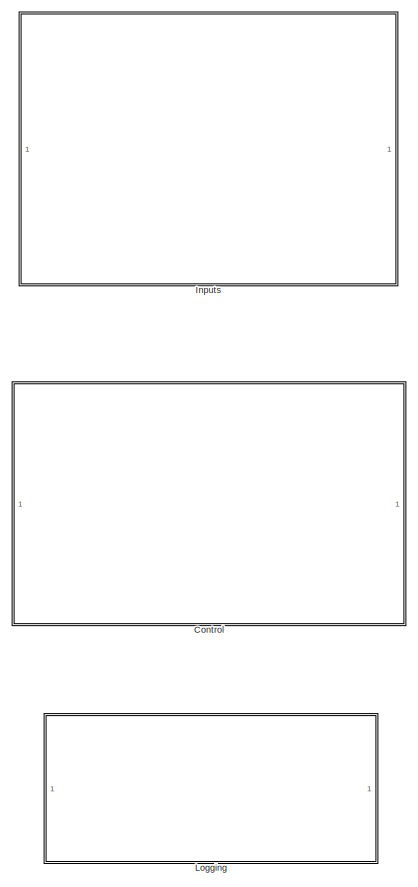
[diagram: root canvas - part 1/2, left side, full height]
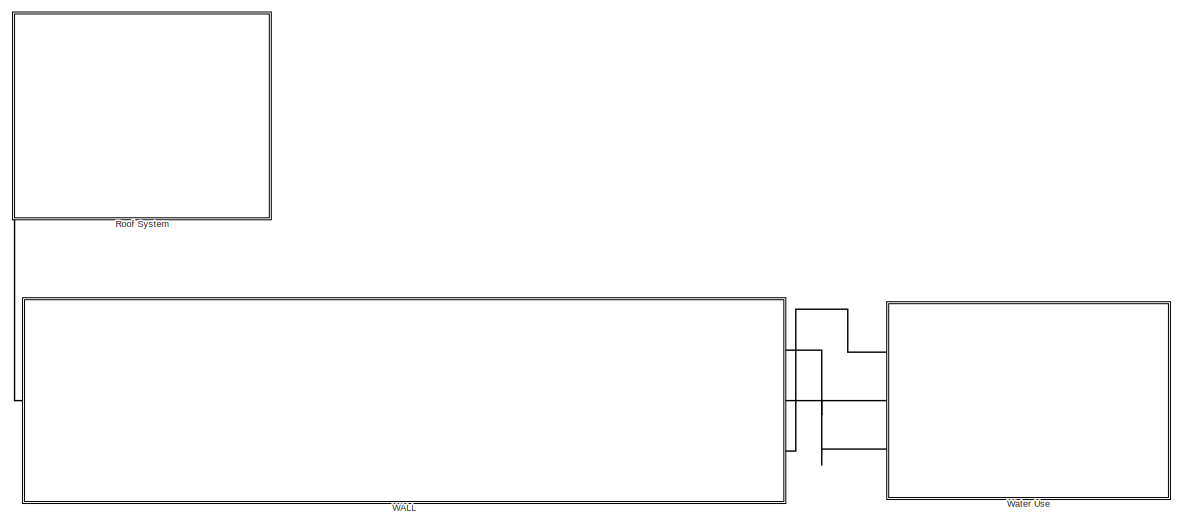
[diagram: root canvas - part 2/2, middle right region]
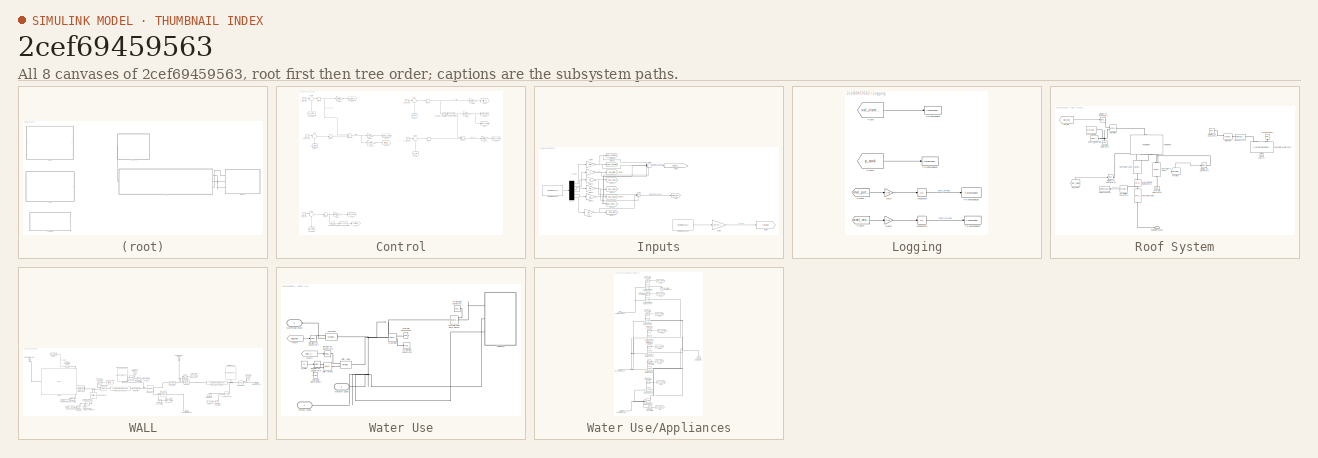
[diagram: thumbnail index - all 8 canvases of the model, root first then tree order]
MODEL slx_2cef69459563
KIND model
CONFIG AbsTol = 1e-3
CONFIG EnableMultiTasking = on
CONFIG FixedStep = auto
CONFIG MaxStep = auto
CONFIG MinStep = auto
CONFIG RelTol = 1e-3
CONFIG SampleTimeConstraint = Unconstrained
CONFIG Solver = VariableStepAuto
CONFIG SolverName = VariableStepAuto
CONFIG StartTime = 0.0
CONFIG StopTime = tf
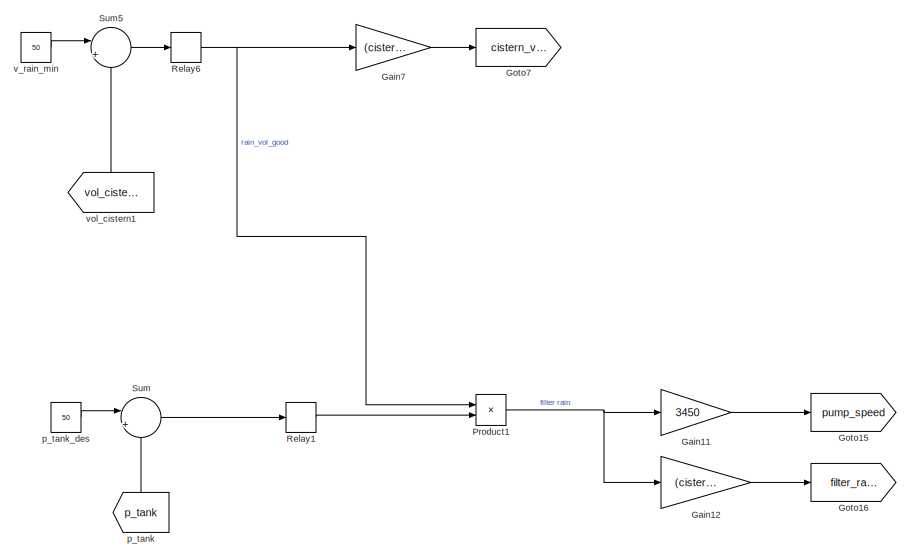
[diagram: Control - part 1/3, top left region]
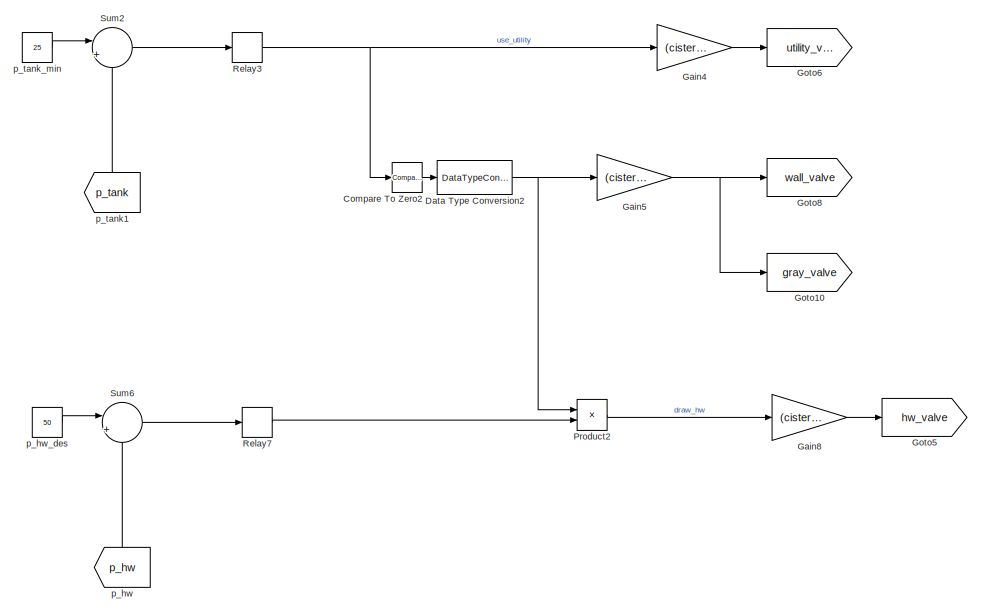
[diagram: Control - part 2/3, top right region]
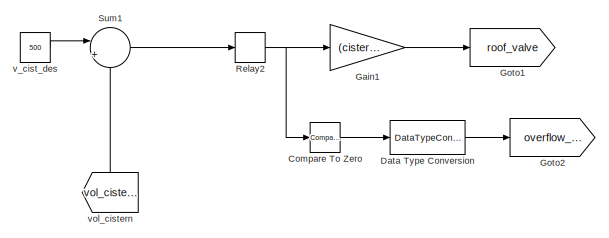
[diagram: Control - part 3/3, bottom left region]
BLOCK [SubSystem] Control
  Ports = []
  RequestExecContextInheritance = off
  Variant = off
BLOCK [Reference] Control/Compare To Zero  REF=simulink/Logic and Bit
Operations/Compare
To Zero
  Ports = [1, 1]
  SourceBlock = simulink/Logic and Bit\nOperations/Compare\nTo Zero
  SourceProductBaseCode = SL
  SourceProductName = Simulink
  SourceType = Compare To Zero
BLOCK [Reference] Control/Compare To Zero2  REF=simulink/Logic and Bit
Operations/Compare
To Zero
  Ports = [1, 1]
  SourceBlock = simulink/Logic and Bit\nOperations/Compare\nTo Zero
  SourceProductBaseCode = SL
  SourceProductName = Simulink
  SourceType = Compare To Zero
BLOCK [DataTypeConversion] Control/Data Type Conversion
  OutDataTypeStr = double
  RndMeth = Floor
  SaturateOnIntegerOverflow = off
BLOCK [DataTypeConversion] Control/Data Type Conversion2
  OutDataTypeStr = double
  RndMeth = Floor
  SaturateOnIntegerOverflow = off
BLOCK [Gain] Control/Gain1
  Gain = (cistern_inlet_diam/2)^2*pi
  OutDataTypeStr = Inherit: Inherit via internal rule
  ParamDataTypeStr = Inherit: Inherit via internal rule
  SaturateOnIntegerOverflow = off
BLOCK [Gain] Control/Gain11
  Gain = 3450
  OutDataTypeStr = Inherit: Inherit via internal rule
  ParamDataTypeStr = Inherit: Inherit via internal rule
  SaturateOnIntegerOverflow = off
BLOCK [Gain] Control/Gain12
  Gain = (cistern_outlet_diam/2)^2*pi
  OutDataTypeStr = Inherit: Inherit via internal rule
  ParamDataTypeStr = Inherit: Inherit via internal rule
  SaturateOnIntegerOverflow = off
BLOCK [Gain] Control/Gain4
  Gain = (cistern_outlet_diam/2)^2*pi
  OutDataTypeStr = Inherit: Inherit via internal rule
  ParamDataTypeStr = Inherit: Inherit via internal rule
  SaturateOnIntegerOverflow = off
BLOCK [Gain] Control/Gain5
  Gain = (cistern_outlet_diam/2)^2*pi
  OutDataTypeStr = Inherit: Inherit via internal rule
  ParamDataTypeStr = Inherit: Inherit via internal rule
  SaturateOnIntegerOverflow = off
BLOCK [Gain] Control/Gain7
  Gain = (cistern_outlet_diam/2)^2*pi
  OutDataTypeStr = Inherit: Inherit via internal rule
  ParamDataTypeStr = Inherit: Inherit via internal rule
  SaturateOnIntegerOverflow = off
BLOCK [Gain] Control/Gain8
  Gain = (cistern_outlet_diam/2)^2*pi
  OutDataTypeStr = Inherit: Inherit via internal rule
  ParamDataTypeStr = Inherit: Inherit via internal rule
  SaturateOnIntegerOverflow = off
BLOCK [Goto] Control/Goto1
  GotoTag = roof_valve
  TagVisibility = global
BLOCK [Goto] Control/Goto10
  GotoTag = gray_valve
  TagVisibility = global
BLOCK [Goto] Control/Goto15
  GotoTag = pump_speed
  TagVisibility = global
BLOCK [Goto] Control/Goto16
  GotoTag = filter_rain
  TagVisibility = global
BLOCK [Goto] Control/Goto2
  GotoTag = overflow_valve
  TagVisibility = global
BLOCK [Goto] Control/Goto5
  GotoTag = hw_valve
  TagVisibility = global
BLOCK [Goto] Control/Goto6
  GotoTag = utility_valve
  TagVisibility = global
BLOCK [Goto] Control/Goto7
  GotoTag = cistern_valve
  TagVisibility = global
BLOCK [Goto] Control/Goto8
  GotoTag = wall_valve
  TagVisibility = global
BLOCK [Product] Control/Product1
  InputSameDT = off
  OutDataTypeStr = Inherit: Inherit via internal rule
  Ports = [2, 1]
  RndMeth = Floor
  SaturateOnIntegerOverflow = off
BLOCK [Product] Control/Product2
  InputSameDT = off
  OutDataTypeStr = Inherit: Inherit via internal rule
  Ports = [2, 1]
  RndMeth = Floor
  SaturateOnIntegerOverflow = off
BLOCK [Relay] Control/Relay1
  InputProcessing = Elements as channels (sample based)
  OffSwitchValue = -10
  OnSwitchValue = 10
BLOCK [Relay] Control/Relay2
  InputProcessing = Elements as channels (sample based)
  OffSwitchValue = -25
  OnSwitchValue = 25
BLOCK [Relay] Control/Relay3
  InputProcessing = Elements as channels (sample based)
  OffSwitchValue = -20
  OnSwitchValue = 4
BLOCK [Relay] Control/Relay6
  InputProcessing = Elements as channels (sample based)
  OffOutputValue = 1
  OffSwitchValue = -50
  OnOutputValue = 0
  OnSwitchValue = 5
BLOCK [Relay] Control/Relay7
  InputProcessing = Elements as channels (sample based)
  OffSwitchValue = -10
  OnSwitchValue = 10
BLOCK [Sum] Control/Sum
  IconShape = round
  InputSameDT = off
  Inputs = |+-
  OutDataTypeStr = Inherit: Inherit via internal rule
  Ports = [2, 1]
  SaturateOnIntegerOverflow = off
BLOCK [Sum] Control/Sum1
  IconShape = round
  InputSameDT = off
  Inputs = |+-
  OutDataTypeStr = Inherit: Inherit via internal rule
  Ports = [2, 1]
  SaturateOnIntegerOverflow = off
BLOCK [Sum] Control/Sum2
  IconShape = round
  InputSameDT = off
  Inputs = |+-
  OutDataTypeStr = Inherit: Inherit via internal rule
  Ports = [2, 1]
  SaturateOnIntegerOverflow = off
BLOCK [Sum] Control/Sum5
  IconShape = round
  InputSameDT = off
  Inputs = |+-
  OutDataTypeStr = Inherit: Inherit via internal rule
  Ports = [2, 1]
  SaturateOnIntegerOverflow = off
BLOCK [Sum] Control/Sum6
  IconShape = round
  InputSameDT = off
  Inputs = |+-
  OutDataTypeStr = Inherit: Inherit via internal rule
  Ports = [2, 1]
  SaturateOnIntegerOverflow = off
BLOCK [From] Control/p_hw
  GotoTag = p_hw
  TagVisibility = global
BLOCK [Constant] Control/p_hw_des
  Value = 50
BLOCK [From] Control/p_tank
  GotoTag = p_tank
  TagVisibility = global
BLOCK [From] Control/p_tank1
  GotoTag = p_tank
  TagVisibility = global
BLOCK [Constant] Control/p_tank_des
  Value = 50
BLOCK [Constant] Control/p_tank_min
  Value = 25
BLOCK [Constant] Control/v_cist_des
  Value = 500
BLOCK [Constant] Control/v_rain_min
  Value = 50
BLOCK [From] Control/vol_cistern
  GotoTag = vol_cistern
  TagVisibility = global
BLOCK [From] Control/vol_cistern1
  GotoTag = vol_cistern
  TagVisibility = global
BLOCK [SubSystem] Inputs
  Ports = []
  RequestExecContextInheritance = off
  Variant = off
BLOCK [Demux] Inputs/Demux
  DisplayOption = bar
  Outputs = 6
  Ports = [1, 6]
BLOCK [FromWorkspace] Inputs/From Workspace
  SampleTime = 60
  VariableName = demand_profiles
  ZeroCross = on
BLOCK [FromWorkspace] Inputs/From Workspace1
  Interpolate = off
  OutputAfterFinalValue = Setting to zero
  SampleTime = 0
  VariableName = rain_data
  ZeroCross = on
BLOCK [Gain] Inputs/Gain10
  Gain = 0.4
  OutDataTypeStr = Inherit: Inherit via internal rule
  ParamDataTypeStr = Inherit: Inherit via internal rule
  SaturateOnIntegerOverflow = off
BLOCK [Gain] Inputs/Gain11
  Gain = 0.8
  OutDataTypeStr = Inherit: Inherit via internal rule
  ParamDataTypeStr = Inherit: Inherit via internal rule
  SaturateOnIntegerOverflow = off
BLOCK [Gain] Inputs/Gain12
  Gain = 1.5
  OutDataTypeStr = Inherit: Inherit via internal rule
  ParamDataTypeStr = Inherit: Inherit via internal rule
  SaturateOnIntegerOverflow = off
BLOCK [Gain] Inputs/Gain13
  Gain = 4/5
  OutDataTypeStr = Inherit: Inherit via internal rule
  ParamDataTypeStr = Inherit: Inherit via internal rule
  SaturateOnIntegerOverflow = off
BLOCK [Gain] Inputs/Gain2
  Gain = 50*70*.75*.6/(3600)
  OutDataTypeStr = Inherit: Inherit via internal rule
  ParamDataTypeStr = Inherit: Inherit via internal rule
  SaturateOnIntegerOverflow = off
BLOCK [Gain] Inputs/Gain8
  Gain = 2.5/2
  OutDataTypeStr = Inherit: Inherit via internal rule
  ParamDataTypeStr = Inherit: Inherit via internal rule
  SaturateOnIntegerOverflow = off
BLOCK [Gain] Inputs/Gain9
  Gain = 2
  OutDataTypeStr = Inherit: Inherit via internal rule
  ParamDataTypeStr = Inherit: Inherit via internal rule
  SaturateOnIntegerOverflow = off
BLOCK [Goto] Inputs/Goto
  GotoTag = total_potable
  TagVisibility = global
BLOCK [Goto] Inputs/Goto1
  GotoTag = total_recycled
  TagVisibility = global
BLOCK [Goto] Inputs/Goto11
  GotoTag = app_shower
  TagVisibility = global
BLOCK [Goto] Inputs/Goto12
  GotoTag = app_toilet
  TagVisibility = global
BLOCK [Goto] Inputs/Goto13
  GotoTag = app_sink1
  TagVisibility = global
BLOCK [Goto] Inputs/Goto14
  GotoTag = app_sink2
  TagVisibility = global
BLOCK [Goto] Inputs/Goto15
  GotoTag = app_wash
  TagVisibility = global
BLOCK [Goto] Inputs/Goto16
  GotoTag = app_wash_hw
  TagVisibility = global
BLOCK [Goto] Inputs/Goto17
  GotoTag = app_dish
  TagVisibility = global
BLOCK [Goto] Inputs/Goto18
  GotoTag = app_shower_hw
  TagVisibility = global
BLOCK [Goto] Inputs/Goto4
  GotoTag = rain_flow
  TagVisibility = global
BLOCK [Sum] Inputs/Sum2
  IconShape = round
  InputSameDT = off
  Inputs = |+++++
  OutDataTypeStr = Inherit: Inherit via internal rule
  Ports = [5, 1]
  SaturateOnIntegerOverflow = off
BLOCK [Sum] Inputs/Sum3
  IconShape = round
  InputSameDT = off
  Inputs = |+++
  OutDataTypeStr = Inherit: Inherit via internal rule
  Ports = [3, 1]
  SaturateOnIntegerOverflow = off
BLOCK [SubSystem] Logging
  Ports = []
  RequestExecContextInheritance = off
  Variant = off
BLOCK [From] Logging/From
  GotoTag = vol_cistern
  TagVisibility = global
BLOCK [From] Logging/From2
  GotoTag = total_potable
  TagVisibility = global
BLOCK [From] Logging/From3
  GotoTag = p_tank
  TagVisibility = global
BLOCK [From] Logging/From4
  GotoTag = total_recycled
  TagVisibility = global
BLOCK [Gain] Logging/Gain
  Gain = 1/60
  OutDataTypeStr = Inherit: Inherit via internal rule
  ParamDataTypeStr = Inherit: Inherit via internal rule
  SaturateOnIntegerOverflow = off
BLOCK [Gain] Logging/Gain1
  Gain = 1/60
  OutDataTypeStr = Inherit: Inherit via internal rule
  ParamDataTypeStr = Inherit: Inherit via internal rule
  SaturateOnIntegerOverflow = off
BLOCK [Integrator] Logging/Integrator
  Ports = [1, 1]
BLOCK [Integrator] Logging/Integrator1
  Ports = [1, 1]
BLOCK [ToWorkspace] Logging/To Workspace
  FixptAsFi = on
  MaxDataPoints = inf
  Ports = [1]
  SampleTime = 3600
  Save2DSignal = 3-D array (concatenate along third dimension)
  SaveFormat = Timeseries
  VariableName = sim_vol_cist
BLOCK [ToWorkspace] Logging/To Workspace2
  FixptAsFi = on
  MaxDataPoints = inf
  Ports = [1]
  SampleTime = 3600
  Save2DSignal = 3-D array (concatenate along third dimension)
  SaveFormat = Timeseries
  VariableName = sim_p_rec
BLOCK [ToWorkspace] Logging/To Workspace3
  FixptAsFi = on
  MaxDataPoints = inf
  Ports = [1]
  SampleTime = 3600
  Save2DSignal = 3-D array (concatenate along third dimension)
  SaveFormat = Timeseries
  VariableName = sim_total_potable
BLOCK [ToWorkspace] Logging/To Workspace4
  FixptAsFi = on
  MaxDataPoints = inf
  Ports = [1]
  SampleTime = 3600
  Save2DSignal = 3-D array (concatenate along third dimension)
  SaveFormat = Timeseries
  VariableName = sim_total_recycled
BLOCK [SubSystem] Roof System
  Ports = [0, 0, 0, 0, 0, 1]
  RequestExecContextInheritance = off
  Variant = off
BLOCK [Reference] Roof System/Cap (TL)  REF=fl_lib/Thermal Liquid/Elements/Cap (TL)
  Commented = on
  Ports = [0, 0, 0, 0, 0, 1]
  SourceBlock = fl_lib/Thermal Liquid/Elements/Cap (TL)
  SourceProductBaseCode = SS
  SourceProductName = Simscape
  SourceType = Cap (TL)
BLOCK [Reference] Roof System/Flow Divider  REF=sh_lib/Valves/Flow Control Valves/Flow Divider
  Ports = [0, 0, 0, 0, 0, 1, 2]
  SourceBlock = sh_lib/Valves/Flow Control Valves/Flow Divider
  SourceProductBaseCode = SH
  SourceProductName = Simscape Fluids
  SourceType = Flow Divider
BLOCK [Reference] Roof System/Hydraulic Flow Rate Sensor2  REF=fl_lib/Hydraulic/Hydraulic Sensors/Hydraulic Flow Rate
Sensor
  Ports = [0, 0, 0, 0, 0, 1, 3]
  SourceBlock = fl_lib/Hydraulic/Hydraulic Sensors/Hydraulic Flow Rate\nSensor
  SourceProductBaseCode = SS
  SourceProductName = Simscape
  SourceType = Hydraulic Flow Rate\nSensor
BLOCK [Reference] Roof System/Hydraulic Fluid  REF=sh_lib/Hydraulic Utilities/Hydraulic Fluid
  Ports = [0, 0, 0, 0, 0, 0, 1]
  SourceBlock = sh_lib/Hydraulic Utilities/Hydraulic Fluid
  SourceProductBaseCode = SH
  SourceProductName = Simscape Fluids
  SourceType = Hydraulic Fluid
BLOCK [Reference] Roof System/Hydraulic Reference  REF=fl_lib/Hydraulic/Hydraulic Elements/Hydraulic Reference
  Ports = [0, 0, 0, 0, 0, 1]
  SourceBlock = fl_lib/Hydraulic/Hydraulic Elements/Hydraulic Reference
  SourceProductName = Foundation Library
  SourceType = Hydraulic Reference
BLOCK [Reference] Roof System/Hydraulic Reference3  REF=fl_lib/Hydraulic/Hydraulic Elements/Hydraulic Reference
  Ports = [0, 0, 0, 0, 0, 1]
  SourceBlock = fl_lib/Hydraulic/Hydraulic Elements/Hydraulic Reference
  SourceProductName = Foundation Library
  SourceType = Hydraulic Reference
BLOCK [Reference] Roof System/Interface (TL-IL)  REF=SimscapeFluids_lib/Fluid Network
Interfaces/Interface (TL-IL)
  Commented = on
  Ports = [0, 0, 0, 0, 0, 1, 1]
  SourceBlock = SimscapeFluids_lib/Fluid Network\nInterfaces/Interface (TL-IL)
  SourceProductBaseCode = SH
  SourceProductName = Simscape Fluids
  SourceType = Interface (TL-IL)
BLOCK [Reference] Roof System/PS-Simulink Converter4  REF=nesl_utility/PS-Simulink
Converter
  Ports = [0, 1, 0, 0, 0, 1]
  SourceBlock = nesl_utility/PS-Simulink\nConverter
  SourceProductBaseCode = SS
  SourceProductName = Simscape
  SourceType = PS-Simulink\nConverter
BLOCK [Reference] Roof System/Perfect Insulator1  REF=fl_lib/Thermal/Thermal Elements/Perfect Insulator
  Commented = on
  Ports = [0, 0, 0, 0, 0, 1]
  SourceBlock = fl_lib/Thermal/Thermal Elements/Perfect Insulator
  SourceProductBaseCode = SS
  SourceProductName = Simscape
  SourceType = Perfect Insulator
BLOCK [Reference] Roof System/Rain Water  REF=fl_lib/Hydraulic/Hydraulic Sources/Hydraulic Mass Flow
Rate Source
  Ports = [0, 0, 0, 0, 0, 1, 2]
  SourceBlock = fl_lib/Hydraulic/Hydraulic Sources/Hydraulic Mass Flow\nRate Source
  SourceProductBaseCode = SS
  SourceProductName = Simscape
  SourceType = Hydraulic Mass Flow\nRate Source
BLOCK [PMIOPort] Roof System/Rain Water Supply
  Port = 1
  Side = Left
BLOCK [Reference] Roof System/Roof-Cistern Pipe  REF=sh_lib/Low-Pressure Blocks/Hydraulic Pipe LP
  Ports = [0, 0, 0, 0, 0, 1, 1]
  SourceBlock = sh_lib/Low-Pressure Blocks/Hydraulic Pipe LP
  SourceProductBaseCode = SH
  SourceProductName = Simscape Fluids
  SourceType = Hydraulic Pipe LP
BLOCK [Reference] Roof System/Roof-Cistern Valve  REF=fl_lib/Hydraulic/Hydraulic Elements/Variable Area
Hydraulic Orifice
  Ports = [0, 0, 0, 0, 0, 2, 1]
  SourceBlock = fl_lib/Hydraulic/Hydraulic Elements/Variable Area\nHydraulic Orifice
  SourceProductBaseCode = SS
  SourceProductName = Simscape
  SourceType = Variable Area\nHydraulic Orifice
BLOCK [Reference] Roof System/Roof-Cistern Valve1  REF=fl_lib/Hydraulic/Hydraulic Elements/Variable Area
Hydraulic Orifice
  Ports = [0, 0, 0, 0, 0, 2, 1]
  SourceBlock = fl_lib/Hydraulic/Hydraulic Elements/Variable Area\nHydraulic Orifice
  SourceProductBaseCode = SS
  SourceProductName = Simscape
  SourceType = Variable Area\nHydraulic Orifice
BLOCK [Reference] Roof System/SWH Valve  REF=fl_lib/Hydraulic/Hydraulic Elements/Variable Area
Hydraulic Orifice
  Commented = on
  Ports = [0, 0, 0, 0, 0, 2, 1]
  SourceBlock = fl_lib/Hydraulic/Hydraulic Elements/Variable Area\nHydraulic Orifice
  SourceProductBaseCode = SS
  SourceProductName = Simscape
  SourceType = Variable Area\nHydraulic Orifice
BLOCK [Reference] Roof System/Simulink-PS Converter1  REF=nesl_utility/Simulink-PS
Converter
  Ports = [1, 0, 0, 0, 0, 0, 1]
  SourceBlock = nesl_utility/Simulink-PS\nConverter
  SourceProductBaseCode = SS
  SourceProductName = Simscape
  SourceType = Simulink-PS\nConverter
BLOCK [Reference] Roof System/Simulink-PS Converter10  REF=nesl_utility/Simulink-PS
Converter
  Ports = [1, 0, 0, 0, 0, 0, 1]
  SourceBlock = nesl_utility/Simulink-PS\nConverter
  SourceProductBaseCode = SS
  SourceProductName = Simscape
  SourceType = Simulink-PS\nConverter
BLOCK [Reference] Roof System/Simulink-PS Converter2  REF=nesl_utility/Simulink-PS
Converter
  Ports = [1, 0, 0, 0, 0, 0, 1]
  SourceBlock = nesl_utility/Simulink-PS\nConverter
  SourceProductBaseCode = SS
  SourceProductName = Simscape
  SourceType = Simulink-PS\nConverter
BLOCK [Reference] Roof System/Simulink-PS Converter9  REF=nesl_utility/Simulink-PS
Converter
  Commented = on
  Ports = [1, 0, 0, 0, 0, 0, 1]
  SourceBlock = nesl_utility/Simulink-PS\nConverter
  SourceProductBaseCode = SS
  SourceProductName = Simscape
  SourceType = Simulink-PS\nConverter
BLOCK [Reference] Roof System/Solar Water Heater Tank  REF=fl_lib/Thermal Liquid/Elements/2-Port Constant
Volume Chamber (TL)
  Commented = on
  Ports = [0, 0, 0, 0, 0, 2, 1]
  SourceBlock = fl_lib/Thermal Liquid/Elements/2-Port Constant\nVolume Chamber (TL)
  SourceProductBaseCode = SS
  SourceProductName = Simscape
  SourceType = 2-Port Constant\nVolume Chamber (TL)
BLOCK [Reference] Roof System/Solver Configuration  REF=nesl_utility/Solver
Configuration
  Ports = [0, 0, 0, 0, 0, 0, 1]
  SourceBlock = nesl_utility/Solver\nConfiguration
  SourceProductBaseCode = SS
  SourceProductName = Simscape
  SourceType = Solver\nConfiguration
BLOCK [ToWorkspace] Roof System/To Workspace1
  FixptAsFi = on
  MaxDataPoints = inf
  Ports = [1]
  SampleTime = -1
  Save2DSignal = 3-D array (concatenate along third dimension)
  SaveFormat = Timeseries
  VariableName = data_rain
BLOCK [From] Roof System/overflow
  GotoTag = overflow_valve
  TagVisibility = global
BLOCK [From] Roof System/rain_flow
  GotoTag = rain_flow
  TagVisibility = global
BLOCK [From] Roof System/roof_valve
  GotoTag = roof_valve
  TagVisibility = global
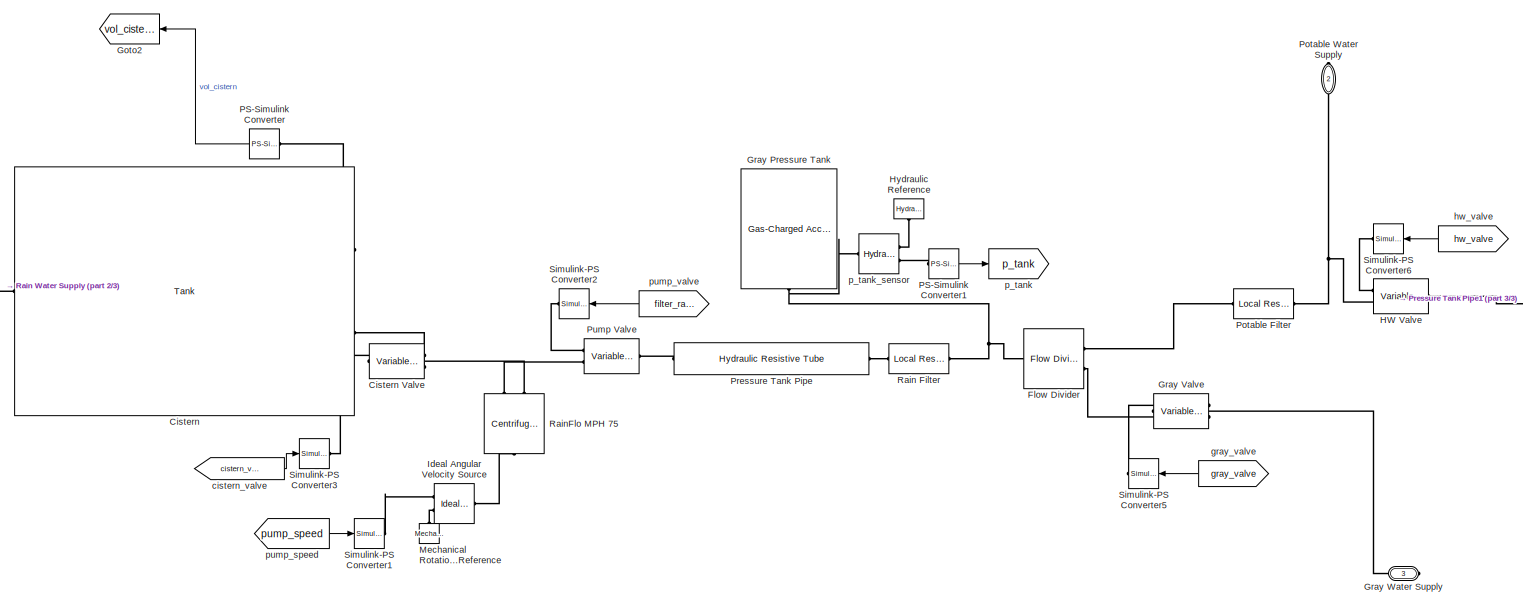
[diagram: WALL - part 1/3, center side, full height]
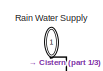
[diagram: WALL - part 2/3, top left region]
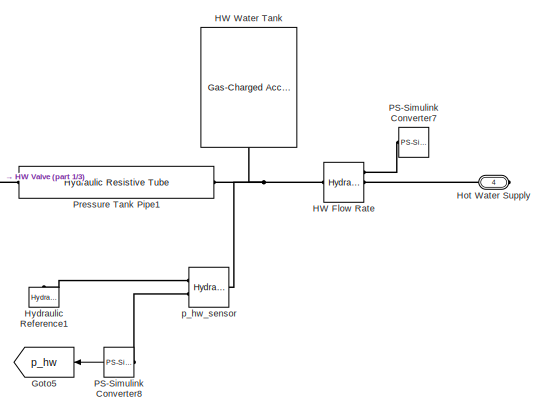
[diagram: WALL - part 3/3, middle right region]
BLOCK [SubSystem] WALL
  Ports = [0, 0, 0, 0, 0, 1, 3]
  RequestExecContextInheritance = off
  Variant = off
BLOCK [Reference] WALL/Cistern  REF=sh_lib/Low-Pressure Blocks/Tank
  Ports = [0, 0, 0, 0, 0, 1, 2]
  SourceBlock = sh_lib/Low-Pressure Blocks/Tank
  SourceProductBaseCode = SH
  SourceProductName = Simscape Fluids
  SourceType = Tank
BLOCK [Reference] WALL/Cistern Valve  REF=fl_lib/Hydraulic/Hydraulic Elements/Variable Area
Hydraulic Orifice
  Ports = [0, 0, 0, 0, 0, 2, 1]
  SourceBlock = fl_lib/Hydraulic/Hydraulic Elements/Variable Area\nHydraulic Orifice
  SourceProductBaseCode = SS
  SourceProductName = Simscape
  SourceType = Variable Area\nHydraulic Orifice
BLOCK [Reference] WALL/Flow Divider  REF=sh_lib/Valves/Flow Control Valves/Flow Divider
  Ports = [0, 0, 0, 0, 0, 1, 2]
  SourceBlock = sh_lib/Valves/Flow Control Valves/Flow Divider
  SourceProductBaseCode = SH
  SourceProductName = Simscape Fluids
  SourceType = Flow Divider
BLOCK [Goto] WALL/Goto2
  GotoTag = vol_cistern
  TagVisibility = global
BLOCK [Goto] WALL/Goto5
  GotoTag = p_hw
  TagVisibility = global
BLOCK [Reference] WALL/Gray Pressure Tank  REF=sh_lib/Accumulators/Gas-Charged
Accumulator
  Ports = [0, 0, 0, 0, 0, 0, 1]
  SourceBlock = sh_lib/Accumulators/Gas-Charged\nAccumulator
  SourceProductBaseCode = SH
  SourceProductName = Simscape Fluids
  SourceType = Gas-Charged\nAccumulator
BLOCK [Reference] WALL/Gray Valve  REF=fl_lib/Hydraulic/Hydraulic Elements/Variable Area
Hydraulic Orifice
  Ports = [0, 0, 0, 0, 0, 2, 1]
  SourceBlock = fl_lib/Hydraulic/Hydraulic Elements/Variable Area\nHydraulic Orifice
  SourceProductBaseCode = SS
  SourceProductName = Simscape
  SourceType = Variable Area\nHydraulic Orifice
BLOCK [PMIOPort] WALL/Gray Water Supply
  Port = 3
  Side = Right
BLOCK [Reference] WALL/HW Flow Rate  REF=fl_lib/Hydraulic/Hydraulic Sensors/Hydraulic Flow Rate
Sensor
  Ports = [0, 0, 0, 0, 0, 1, 3]
  SourceBlock = fl_lib/Hydraulic/Hydraulic Sensors/Hydraulic Flow Rate\nSensor
  SourceProductBaseCode = SS
  SourceProductName = Simscape
  SourceType = Hydraulic Flow Rate\nSensor
BLOCK [Reference] WALL/HW Valve  REF=fl_lib/Hydraulic/Hydraulic Elements/Variable Area
Hydraulic Orifice
  Ports = [0, 0, 0, 0, 0, 2, 1]
  SourceBlock = fl_lib/Hydraulic/Hydraulic Elements/Variable Area\nHydraulic Orifice
  SourceProductBaseCode = SS
  SourceProductName = Simscape
  SourceType = Variable Area\nHydraulic Orifice
BLOCK [Reference] WALL/HW Water Tank  REF=sh_lib/Accumulators/Gas-Charged
Accumulator
  Ports = [0, 0, 0, 0, 0, 0, 1]
  SourceBlock = sh_lib/Accumulators/Gas-Charged\nAccumulator
  SourceProductBaseCode = SH
  SourceProductName = Simscape Fluids
  SourceType = Gas-Charged\nAccumulator
BLOCK [PMIOPort] WALL/Hot Water Supply
  Port = 4
  Side = Right
BLOCK [Reference] WALL/Hydraulic Reference  REF=fl_lib/Hydraulic/Hydraulic Elements/Hydraulic Reference
  Ports = [0, 0, 0, 0, 0, 1]
  SourceBlock = fl_lib/Hydraulic/Hydraulic Elements/Hydraulic Reference
  SourceProductName = Foundation Library
  SourceType = Hydraulic Reference
BLOCK [Reference] WALL/Hydraulic Reference1  REF=fl_lib/Hydraulic/Hydraulic Elements/Hydraulic Reference
  Ports = [0, 0, 0, 0, 0, 1]
  SourceBlock = fl_lib/Hydraulic/Hydraulic Elements/Hydraulic Reference
  SourceProductName = Foundation Library
  SourceType = Hydraulic Reference
BLOCK [Reference] WALL/Ideal Angular Velocity Source  REF=fl_lib/Mechanical/Mechanical Sources/Ideal Angular
Velocity Source
  Ports = [0, 0, 0, 0, 0, 1, 2]
  SourceBlock = fl_lib/Mechanical/Mechanical Sources/Ideal Angular\nVelocity Source
  SourceProductBaseCode = SS
  SourceProductName = Simscape
  SourceType = Ideal Angular\nVelocity Source
BLOCK [Reference] WALL/Mechanical Rotational Reference  REF=fl_lib/Mechanical/Rotational Elements/Mechanical
Rotational Reference
  Ports = [0, 0, 0, 0, 0, 1]
  SourceBlock = fl_lib/Mechanical/Rotational Elements/Mechanical\nRotational Reference
  SourceProductBaseCode = SS
  SourceProductName = Simscape
  SourceType = Mechanical\nRotational Reference
BLOCK [Reference] WALL/PS-Simulink Converter  REF=nesl_utility/PS-Simulink
Converter
  Ports = [0, 1, 0, 0, 0, 1]
  SourceBlock = nesl_utility/PS-Simulink\nConverter
  SourceProductBaseCode = SS
  SourceProductName = Simscape
  SourceType = PS-Simulink\nConverter
BLOCK [Reference] WALL/PS-Simulink Converter1  REF=nesl_utility/PS-Simulink
Converter
  Ports = [0, 1, 0, 0, 0, 1]
  SourceBlock = nesl_utility/PS-Simulink\nConverter
  SourceProductBaseCode = SS
  SourceProductName = Simscape
  SourceType = PS-Simulink\nConverter
BLOCK [Reference] WALL/PS-Simulink Converter7  REF=nesl_utility/PS-Simulink
Converter
  Ports = [0, 1, 0, 0, 0, 1]
  SourceBlock = nesl_utility/PS-Simulink\nConverter
  SourceProductBaseCode = SS
  SourceProductName = Simscape
  SourceType = PS-Simulink\nConverter
BLOCK [Reference] WALL/PS-Simulink Converter8  REF=nesl_utility/PS-Simulink
Converter
  Ports = [0, 1, 0, 0, 0, 1]
  SourceBlock = nesl_utility/PS-Simulink\nConverter
  SourceProductBaseCode = SS
  SourceProductName = Simscape
  SourceType = PS-Simulink\nConverter
BLOCK [Reference] WALL/Potable Filter  REF=sh_lib/Local Hydraulic
Resistances/Local Resistance
  Ports = [0, 0, 0, 0, 0, 1, 1]
  SourceBlock = sh_lib/Local Hydraulic\nResistances/Local Resistance
  SourceProductBaseCode = SH
  SourceProductName = Simscape Fluids
  SourceType = Local Resistance
BLOCK [PMIOPort] WALL/Potable Water Supply
  Port = 2
  Side = Right
BLOCK [Reference] WALL/Pressure Tank Pipe  REF=fl_lib/Hydraulic/Hydraulic Elements/Hydraulic Resistive
Tube
  Ports = [0, 0, 0, 0, 0, 1, 1]
  SourceBlock = fl_lib/Hydraulic/Hydraulic Elements/Hydraulic Resistive\nTube
  SourceProductBaseCode = SS
  SourceProductName = Simscape
  SourceType = Hydraulic Resistive\nTube
BLOCK [Reference] WALL/Pressure Tank Pipe1  REF=fl_lib/Hydraulic/Hydraulic Elements/Hydraulic Resistive
Tube
  Ports = [0, 0, 0, 0, 0, 1, 1]
  SourceBlock = fl_lib/Hydraulic/Hydraulic Elements/Hydraulic Resistive\nTube
  SourceProductBaseCode = SS
  SourceProductName = Simscape
  SourceType = Hydraulic Resistive\nTube
BLOCK [Reference] WALL/Pump Valve  REF=fl_lib/Hydraulic/Hydraulic Elements/Variable Area
Hydraulic Orifice
  Ports = [0, 0, 0, 0, 0, 2, 1]
  SourceBlock = fl_lib/Hydraulic/Hydraulic Elements/Variable Area\nHydraulic Orifice
  SourceProductBaseCode = SS
  SourceProductName = Simscape
  SourceType = Variable Area\nHydraulic Orifice
BLOCK [Reference] WALL/Rain Filter  REF=sh_lib/Local Hydraulic
Resistances/Local Resistance
  Ports = [0, 0, 0, 0, 0, 1, 1]
  SourceBlock = sh_lib/Local Hydraulic\nResistances/Local Resistance
  SourceProductBaseCode = SH
  SourceProductName = Simscape Fluids
  SourceType = Local Resistance
BLOCK [PMIOPort] WALL/Rain Water Supply
  Port = 1
  Side = Left
BLOCK [Reference] WALL/RainFlo MPH 75  REF=sh_lib/Pumps and Motors/Centrifugal Pump
  Ports = [0, 0, 0, 0, 0, 1, 2]
  SourceBlock = sh_lib/Pumps and Motors/Centrifugal Pump
  SourceProductBaseCode = SH
  SourceProductName = Simscape Fluids
  SourceType = Centrifugal Pump
BLOCK [Reference] WALL/Simulink-PS Converter1  REF=nesl_utility/Simulink-PS
Converter
  Ports = [1, 0, 0, 0, 0, 0, 1]
  SourceBlock = nesl_utility/Simulink-PS\nConverter
  SourceProductBaseCode = SS
  SourceProductName = Simscape
  SourceType = Simulink-PS\nConverter
BLOCK [Reference] WALL/Simulink-PS Converter2  REF=nesl_utility/Simulink-PS
Converter
  Ports = [1, 0, 0, 0, 0, 0, 1]
  SourceBlock = nesl_utility/Simulink-PS\nConverter
  SourceProductBaseCode = SS
  SourceProductName = Simscape
  SourceType = Simulink-PS\nConverter
BLOCK [Reference] WALL/Simulink-PS Converter3  REF=nesl_utility/Simulink-PS
Converter
  Ports = [1, 0, 0, 0, 0, 0, 1]
  SourceBlock = nesl_utility/Simulink-PS\nConverter
  SourceProductBaseCode = SS
  SourceProductName = Simscape
  SourceType = Simulink-PS\nConverter
BLOCK [Reference] WALL/Simulink-PS Converter5  REF=nesl_utility/Simulink-PS
Converter
  Ports = [1, 0, 0, 0, 0, 0, 1]
  SourceBlock = nesl_utility/Simulink-PS\nConverter
  SourceProductBaseCode = SS
  SourceProductName = Simscape
  SourceType = Simulink-PS\nConverter
BLOCK [Reference] WALL/Simulink-PS Converter6  REF=nesl_utility/Simulink-PS
Converter
  Ports = [1, 0, 0, 0, 0, 0, 1]
  SourceBlock = nesl_utility/Simulink-PS\nConverter
  SourceProductBaseCode = SS
  SourceProductName = Simscape
  SourceType = Simulink-PS\nConverter
BLOCK [From] WALL/cistern_valve
  GotoTag = cistern_valve
  TagVisibility = global
BLOCK [From] WALL/gray_valve
  GotoTag = gray_valve
  TagVisibility = global
BLOCK [From] WALL/hw_valve
  GotoTag = hw_valve
  TagVisibility = global
BLOCK [Reference] WALL/p_hw_sensor  REF=fl_lib/Hydraulic/Hydraulic Sensors/Hydraulic Pressure
Sensor
  Ports = [0, 0, 0, 0, 0, 1, 2]
  SourceBlock = fl_lib/Hydraulic/Hydraulic Sensors/Hydraulic Pressure\nSensor
  SourceProductBaseCode = SS
  SourceProductName = Simscape
  SourceType = Hydraulic Pressure\nSensor
BLOCK [Goto] WALL/p_tank
  GotoTag = p_tank
  TagVisibility = global
BLOCK [Reference] WALL/p_tank_sensor  REF=fl_lib/Hydraulic/Hydraulic Sensors/Hydraulic Pressure
Sensor
  Ports = [0, 0, 0, 0, 0, 1, 2]
  SourceBlock = fl_lib/Hydraulic/Hydraulic Sensors/Hydraulic Pressure\nSensor
  SourceProductBaseCode = SS
  SourceProductName = Simscape
  SourceType = Hydraulic Pressure\nSensor
BLOCK [From] WALL/pump_speed
  GotoTag = pump_speed
  TagVisibility = global
BLOCK [From] WALL/pump_valve
  GotoTag = filter_rain
  TagVisibility = global
BLOCK [SubSystem] Water Use
  Ports = [0, 0, 0, 0, 0, 3]
  RequestExecContextInheritance = off
  Variant = off
BLOCK [SubSystem] Water Use/Appliances
  Ports = [0, 0, 0, 0, 0, 3]
  RequestExecContextInheritance = off
  Variant = off
BLOCK [From] Water Use/Appliances/From
  GotoTag = app_sink1
  TagVisibility = global
BLOCK [From] Water Use/Appliances/From1
  GotoTag = app_shower
  TagVisibility = global
BLOCK [From] Water Use/Appliances/From2
  GotoTag = app_wash
  TagVisibility = global
BLOCK [From] Water Use/Appliances/From3
  GotoTag = app_dish
  TagVisibility = global
BLOCK [From] Water Use/Appliances/From4
  GotoTag = app_toilet
  TagVisibility = global
BLOCK [From] Water Use/Appliances/From5
  GotoTag = app_sink2
  TagVisibility = global
BLOCK [From] Water Use/Appliances/From6
  GotoTag = app_shower_hw
  TagVisibility = global
BLOCK [From] Water Use/Appliances/From7
  GotoTag = app_wash_hw
  TagVisibility = global
BLOCK [PMIOPort] Water Use/Appliances/Hot Water Supply
  Port = 3
  Side = Left
BLOCK [Reference] Water Use/Appliances/Hydraulic Flow Rate Source  REF=fl_lib/Hydraulic/Hydraulic Sources/Hydraulic Flow Rate
Source
  Ports = [0, 0, 0, 0, 0, 1, 2]
  SourceBlock = fl_lib/Hydraulic/Hydraulic Sources/Hydraulic Flow Rate\nSource
  SourceProductBaseCode = SS
  SourceProductName = Simscape
  SourceType = Hydraulic Flow Rate\nSource
BLOCK [Reference] Water Use/Appliances/Hydraulic Flow Rate Source1  REF=fl_lib/Hydraulic/Hydraulic Sources/Hydraulic Flow Rate
Source
  Ports = [0, 0, 0, 0, 0, 1, 2]
  SourceBlock = fl_lib/Hydraulic/Hydraulic Sources/Hydraulic Flow Rate\nSource
  SourceProductBaseCode = SS
  SourceProductName = Simscape
  SourceType = Hydraulic Flow Rate\nSource
BLOCK [Reference] Water Use/Appliances/Hydraulic Flow Rate Source2  REF=fl_lib/Hydraulic/Hydraulic Sources/Hydraulic Flow Rate
Source
  Ports = [0, 0, 0, 0, 0, 1, 2]
  SourceBlock = fl_lib/Hydraulic/Hydraulic Sources/Hydraulic Flow Rate\nSource
  SourceProductBaseCode = SS
  SourceProductName = Simscape
  SourceType = Hydraulic Flow Rate\nSource
BLOCK [Reference] Water Use/Appliances/Hydraulic Flow Rate Source3  REF=fl_lib/Hydraulic/Hydraulic Sources/Hydraulic Flow Rate
Source
  Ports = [0, 0, 0, 0, 0, 1, 2]
  SourceBlock = fl_lib/Hydraulic/Hydraulic Sources/Hydraulic Flow Rate\nSource
  SourceProductBaseCode = SS
  SourceProductName = Simscape
  SourceType = Hydraulic Flow Rate\nSource
BLOCK [Reference] Water Use/Appliances/Hydraulic Flow Rate Source4  REF=fl_lib/Hydraulic/Hydraulic Sources/Hydraulic Flow Rate
Source
  Ports = [0, 0, 0, 0, 0, 1, 2]
  SourceBlock = fl_lib/Hydraulic/Hydraulic Sources/Hydraulic Flow Rate\nSource
  SourceProductBaseCode = SS
  SourceProductName = Simscape
  SourceType = Hydraulic Flow Rate\nSource
BLOCK [Reference] Water Use/Appliances/Hydraulic Flow Rate Source5  REF=fl_lib/Hydraulic/Hydraulic Sources/Hydraulic Flow Rate
Source
  Ports = [0, 0, 0, 0, 0, 1, 2]
  SourceBlock = fl_lib/Hydraulic/Hydraulic Sources/Hydraulic Flow Rate\nSource
  SourceProductBaseCode = SS
  SourceProductName = Simscape
  SourceType = Hydraulic Flow Rate\nSource
BLOCK [Reference] Water Use/Appliances/Hydraulic Flow Rate Source6  REF=fl_lib/Hydraulic/Hydraulic Sources/Hydraulic Flow Rate
Source
  Ports = [0, 0, 0, 0, 0, 1, 2]
  SourceBlock = fl_lib/Hydraulic/Hydraulic Sources/Hydraulic Flow Rate\nSource
  SourceProductBaseCode = SS
  SourceProductName = Simscape
  SourceType = Hydraulic Flow Rate\nSource
BLOCK [Reference] Water Use/Appliances/Hydraulic Flow Rate Source7  REF=fl_lib/Hydraulic/Hydraulic Sources/Hydraulic Flow Rate
Source
  Ports = [0, 0, 0, 0, 0, 1, 2]
  SourceBlock = fl_lib/Hydraulic/Hydraulic Sources/Hydraulic Flow Rate\nSource
  SourceProductBaseCode = SS
  SourceProductName = Simscape
  SourceType = Hydraulic Flow Rate\nSource
BLOCK [Reference] Water Use/Appliances/Hydraulic Reference2  REF=fl_lib/Hydraulic/Hydraulic Elements/Hydraulic Reference
  Ports = [0, 0, 0, 0, 0, 1]
  SourceBlock = fl_lib/Hydraulic/Hydraulic Elements/Hydraulic Reference
  SourceProductBaseCode = SS
  SourceProductName = Simscape
  SourceType = Hydraulic Reference
BLOCK [Reference] Water Use/Appliances/Hydraulic Reference3  REF=fl_lib/Hydraulic/Hydraulic Elements/Hydraulic Reference
  Ports = [0, 0, 0, 0, 0, 1]
  SourceBlock = fl_lib/Hydraulic/Hydraulic Elements/Hydraulic Reference
  SourceProductBaseCode = SS
  SourceProductName = Simscape
  SourceType = Hydraulic Reference
BLOCK [PMIOPort] Water Use/Appliances/Potable Supply
  Port = 1
  Side = Left
BLOCK [PMIOPort] Water Use/Appliances/Recycle Supply
  Port = 2
  Side = Left
BLOCK [Reference] Water Use/Appliances/Simulink-PS Converter1  REF=nesl_utility/Simulink-PS
Converter
  Ports = [1, 0, 0, 0, 0, 0, 1]
  SourceBlock = nesl_utility/Simulink-PS\nConverter
  SourceProductBaseCode = SS
  SourceProductName = Simscape
  SourceType = Simulink-PS\nConverter
BLOCK [Reference] Water Use/Appliances/Simulink-PS Converter2  REF=nesl_utility/Simulink-PS
Converter
  Ports = [1, 0, 0, 0, 0, 0, 1]
  SourceBlock = nesl_utility/Simulink-PS\nConverter
  SourceProductBaseCode = SS
  SourceProductName = Simscape
  SourceType = Simulink-PS\nConverter
BLOCK [Reference] Water Use/Appliances/Simulink-PS Converter3  REF=nesl_utility/Simulink-PS
Converter
  Ports = [1, 0, 0, 0, 0, 0, 1]
  SourceBlock = nesl_utility/Simulink-PS\nConverter
  SourceProductBaseCode = SS
  SourceProductName = Simscape
  SourceType = Simulink-PS\nConverter
BLOCK [Reference] Water Use/Appliances/Simulink-PS Converter4  REF=nesl_utility/Simulink-PS
Converter
  Ports = [1, 0, 0, 0, 0, 0, 1]
  SourceBlock = nesl_utility/Simulink-PS\nConverter
  SourceProductBaseCode = SS
  SourceProductName = Simscape
  SourceType = Simulink-PS\nConverter
BLOCK [Reference] Water Use/Appliances/Simulink-PS Converter5  REF=nesl_utility/Simulink-PS
Converter
  Ports = [1, 0, 0, 0, 0, 0, 1]
  SourceBlock = nesl_utility/Simulink-PS\nConverter
  SourceProductBaseCode = SS
  SourceProductName = Simscape
  SourceType = Simulink-PS\nConverter
BLOCK [Reference] Water Use/Appliances/Simulink-PS Converter6  REF=nesl_utility/Simulink-PS
Converter
  Ports = [1, 0, 0, 0, 0, 0, 1]
  SourceBlock = nesl_utility/Simulink-PS\nConverter
  SourceProductBaseCode = SS
  SourceProductName = Simscape
  SourceType = Simulink-PS\nConverter
BLOCK [Reference] Water Use/Appliances/Simulink-PS Converter7  REF=nesl_utility/Simulink-PS
Converter
  Ports = [1, 0, 0, 0, 0, 0, 1]
  SourceBlock = nesl_utility/Simulink-PS\nConverter
  SourceProductBaseCode = SS
  SourceProductName = Simscape
  SourceType = Simulink-PS\nConverter
BLOCK [Reference] Water Use/Appliances/Simulink-PS Converter8  REF=nesl_utility/Simulink-PS
Converter
  Ports = [1, 0, 0, 0, 0, 0, 1]
  SourceBlock = nesl_utility/Simulink-PS\nConverter
  SourceProductBaseCode = SS
  SourceProductName = Simscape
  SourceType = Simulink-PS\nConverter
BLOCK [From] Water Use/From3
  GotoTag = utility_valve
  TagVisibility = global
BLOCK [From] Water Use/From4
  GotoTag = wall_valve
  TagVisibility = global
BLOCK [Reference] Water Use/Hydraulic Flow Rate Sensor  REF=fl_lib/Hydraulic/Hydraulic Sensors/Hydraulic Flow Rate
Sensor
  Ports = [0, 0, 0, 0, 0, 1, 3]
  SourceBlock = fl_lib/Hydraulic/Hydraulic Sensors/Hydraulic Flow Rate\nSensor
  SourceProductBaseCode = SS
  SourceProductName = Simscape
  SourceType = Hydraulic Flow Rate\nSensor
BLOCK [Reference] Water Use/Hydraulic Reference3  REF=fl_lib/Hydraulic/Hydraulic Elements/Hydraulic Reference
  Ports = [0, 0, 0, 0, 0, 1]
  SourceBlock = fl_lib/Hydraulic/Hydraulic Elements/Hydraulic Reference
  SourceProductName = Foundation Library
  SourceType = Hydraulic Reference
BLOCK [Reference] Water Use/Hydraulic Reference5  REF=fl_lib/Hydraulic/Hydraulic Elements/Hydraulic Reference
  Ports = [0, 0, 0, 0, 0, 1]
  SourceBlock = fl_lib/Hydraulic/Hydraulic Elements/Hydraulic Reference
  SourceProductName = Foundation Library
  SourceType = Hydraulic Reference
BLOCK [Reference] Water Use/PS-Simulink Converter1  REF=nesl_utility/PS-Simulink
Converter
  Ports = [0, 1, 0, 0, 0, 1]
  SourceBlock = nesl_utility/PS-Simulink\nConverter
  SourceProductBaseCode = SS
  SourceProductName = Simscape
  SourceType = PS-Simulink\nConverter
BLOCK [Reference] Water Use/PS-Simulink Converter2  REF=nesl_utility/PS-Simulink
Converter
  Ports = [0, 1, 0, 0, 0, 1]
  SourceBlock = nesl_utility/PS-Simulink\nConverter
  SourceProductBaseCode = SS
  SourceProductName = Simscape
  SourceType = PS-Simulink\nConverter
BLOCK [Reference] Water Use/Simulink-PS Converter3  REF=nesl_utility/Simulink-PS
Converter
  Ports = [1, 0, 0, 0, 0, 0, 1]
  SourceBlock = nesl_utility/Simulink-PS\nConverter
  SourceProductBaseCode = SS
  SourceProductName = Simscape
  SourceType = Simulink-PS\nConverter
BLOCK [Reference] Water Use/Simulink-PS Converter6  REF=nesl_utility/Simulink-PS
Converter
  Ports = [1, 0, 0, 0, 0, 0, 1]
  SourceBlock = nesl_utility/Simulink-PS\nConverter
  SourceProductBaseCode = SS
  SourceProductName = Simscape
  SourceType = Simulink-PS\nConverter
BLOCK [Reference] Water Use/Simulink-PS Converter7  REF=nesl_utility/Simulink-PS
Converter
  Ports = [1, 0, 0, 0, 0, 0, 1]
  SourceBlock = nesl_utility/Simulink-PS\nConverter
  SourceProductBaseCode = SS
  SourceProductName = Simscape
  SourceType = Simulink-PS\nConverter
BLOCK [Reference] Water Use/Utility Valve  REF=fl_lib/Hydraulic/Hydraulic Elements/Variable Area
Hydraulic Orifice
  Ports = [0, 0, 0, 0, 0, 2, 1]
  SourceBlock = fl_lib/Hydraulic/Hydraulic Elements/Variable Area\nHydraulic Orifice
  SourceProductBaseCode = SS
  SourceProductName = Simscape
  SourceType = Variable Area\nHydraulic Orifice
BLOCK [Reference] Water Use/Utility Water  REF=fl_lib/Hydraulic/Hydraulic Sources/Hydraulic Pressure
Source
  Ports = [0, 0, 0, 0, 0, 1, 2]
  SourceBlock = fl_lib/Hydraulic/Hydraulic Sources/Hydraulic Pressure\nSource
  SourceProductBaseCode = SS
  SourceProductName = Simscape
  SourceType = Hydraulic Pressure\nSource
BLOCK [PMIOPort] Water Use/Wall Grey Supply
  Port = 3
  Side = Left
BLOCK [PMIOPort] Water Use/Wall Hot Supply
  Port = 1
  Side = Left
BLOCK [PMIOPort] Water Use/Wall Potable Supply
  Port = 2
  Side = Left
BLOCK [Reference] Water Use/Wall Valve  REF=fl_lib/Hydraulic/Hydraulic Elements/Variable Area
Hydraulic Orifice
  Ports = [0, 0, 0, 0, 0, 2, 1]
  SourceBlock = fl_lib/Hydraulic/Hydraulic Elements/Variable Area\nHydraulic Orifice
  SourceProductBaseCode = SS
  SourceProductName = Simscape
  SourceType = Variable Area\nHydraulic Orifice
BLOCK [Reference] Water Use/p_potable  REF=fl_lib/Hydraulic/Hydraulic Sensors/Hydraulic Pressure
Sensor
  Ports = [0, 0, 0, 0, 0, 1, 2]
  SourceBlock = fl_lib/Hydraulic/Hydraulic Sensors/Hydraulic Pressure\nSensor
  SourceProductBaseCode = SS
  SourceProductName = Simscape
  SourceType = Hydraulic Pressure\nSensor
BLOCK [Constant] Water Use/p_utility
  Value = 50
LINE Control/Compare To Zero2:1 -> Control/Data Type Conversion2:1
LINE Control/Compare To Zero:1 -> Control/Data Type Conversion:1
NET Control/Data Type Conversion2:1 -> Control/Gain5:1, Control/Product2:1
LINE Control/Data Type Conversion:1 -> Control/Goto2:1
LINE Control/Gain11:1 -> Control/Goto15:1
LINE Control/Gain12:1 -> Control/Goto16:1
LINE Control/Gain1:1 -> Control/Goto1:1
LINE Control/Gain4:1 -> Control/Goto6:1
NET Control/Gain5:1 -> Control/Goto10:1, Control/Goto8:1
LINE Control/Gain7:1 -> Control/Goto7:1
LINE Control/Gain8:1 -> Control/Goto5:1
NET Control/Product1:1 -> Control/Gain11:1, Control/Gain12:1
LINE Control/Product2:1 -> Control/Gain8:1
LINE Control/Relay1:1 -> Control/Product1:2
NET Control/Relay2:1 -> Control/Compare To Zero:1, Control/Gain1:1
NET Control/Relay3:1 -> Control/Compare To Zero2:1, Control/Gain4:1
NET Control/Relay6:1 -> Control/Gain7:1, Control/Product1:1
LINE Control/Relay7:1 -> Control/Product2:2
LINE Control/Sum1:1 -> Control/Relay2:1
LINE Control/Sum2:1 -> Control/Relay3:1
LINE Control/Sum5:1 -> Control/Relay6:1
LINE Control/Sum6:1 -> Control/Relay7:1
LINE Control/Sum:1 -> Control/Relay1:1
LINE Control/p_hw:1 -> Control/Sum6:2
LINE Control/p_hw_des:1 -> Control/Sum6:1
LINE Control/p_tank1:1 -> Control/Sum2:2
LINE Control/p_tank:1 -> Control/Sum:2
LINE Control/p_tank_des:1 -> Control/Sum:1
LINE Control/p_tank_min:1 -> Control/Sum2:1
LINE Control/v_cist_des:1 -> Control/Sum1:1
LINE Control/v_rain_min:1 -> Control/Sum5:1
LINE Control/vol_cistern1:1 -> Control/Sum5:2
LINE Control/vol_cistern:1 -> Control/Sum1:2
LINE Inputs/Demux:1 -> Inputs/Gain8:1
LINE Inputs/Demux:2 -> Inputs/Gain9:1
LINE Inputs/Demux:3 -> Inputs/Gain10:1
LINE Inputs/Demux:4 -> Inputs/Gain11:1
LINE Inputs/Demux:5 -> Inputs/Gain12:1
LINE Inputs/Demux:6 -> Inputs/Gain13:1
LINE Inputs/From Workspace1:1 -> Inputs/Gain2:1
LINE Inputs/From Workspace:1 -> Inputs/Demux:1
NET Inputs/Gain10:1 -> Inputs/Goto13:1, Inputs/Sum3:1
NET Inputs/Gain11:1 -> Inputs/Goto14:1, Inputs/Sum3:3
NET Inputs/Gain12:1 -> Inputs/Goto15:1, Inputs/Goto16:1, Inputs/Sum2:4, Inputs/Sum2:5
NET Inputs/Gain13:1 -> Inputs/Goto17:1, Inputs/Sum3:2
LINE Inputs/Gain2:1 -> Inputs/Goto4:1
NET Inputs/Gain8:1 -> Inputs/Goto11:1, Inputs/Goto18:1, Inputs/Sum2:1, Inputs/Sum2:2
NET Inputs/Gain9:1 -> Inputs/Goto12:1, Inputs/Sum2:3
LINE Inputs/Sum2:1 -> Inputs/Goto1:1
LINE Inputs/Sum3:1 -> Inputs/Goto:1
LINE Logging/From2:1 -> Logging/Gain:1
LINE Logging/From3:1 -> Logging/To Workspace2:1
LINE Logging/From4:1 -> Logging/Gain1:1
LINE Logging/From:1 -> Logging/To Workspace:1
LINE Logging/Gain1:1 -> Logging/Integrator1:1
LINE Logging/Gain:1 -> Logging/Integrator:1
LINE Logging/Integrator1:1 -> Logging/To Workspace4:1
LINE Logging/Integrator:1 -> Logging/To Workspace3:1
LINE Roof System/PS-Simulink Converter4:1 -> Roof System/To Workspace1:1
LINE Roof System/overflow:1 -> Roof System/Simulink-PS Converter1:1
LINE Roof System/rain_flow:1 -> Roof System/Simulink-PS Converter2:1
LINE Roof System/roof_valve:1 -> Roof System/Simulink-PS Converter10:1
LINE WALL/PS-Simulink Converter1:1 -> WALL/p_tank:1
LINE WALL/PS-Simulink Converter8:1 -> WALL/Goto5:1
LINE WALL/PS-Simulink Converter:1 -> WALL/Goto2:1
LINE WALL/cistern_valve:1 -> WALL/Simulink-PS Converter3:1
LINE WALL/gray_valve:1 -> WALL/Simulink-PS Converter5:1
LINE WALL/hw_valve:1 -> WALL/Simulink-PS Converter6:1
LINE WALL/pump_speed:1 -> WALL/Simulink-PS Converter1:1
LINE WALL/pump_valve:1 -> WALL/Simulink-PS Converter2:1
LINE Water Use/Appliances/From1:1 -> Water Use/Appliances/Simulink-PS Converter1:1
LINE Water Use/Appliances/From2:1 -> Water Use/Appliances/Simulink-PS Converter2:1
LINE Water Use/Appliances/From3:1 -> Water Use/Appliances/Simulink-PS Converter3:1
LINE Water Use/Appliances/From4:1 -> Water Use/Appliances/Simulink-PS Converter5:1
LINE Water Use/Appliances/From5:1 -> Water Use/Appliances/Simulink-PS Converter6:1
LINE Water Use/Appliances/From6:1 -> Water Use/Appliances/Simulink-PS Converter7:1
LINE Water Use/Appliances/From7:1 -> Water Use/Appliances/Simulink-PS Converter8:1
LINE Water Use/Appliances/From:1 -> Water Use/Appliances/Simulink-PS Converter4:1
LINE Water Use/From3:1 -> Water Use/Simulink-PS Converter6:1
LINE Water Use/From4:1 -> Water Use/Simulink-PS Converter7:1
LINE Water Use/p_utility:1 -> Water Use/Simulink-PS Converter3:1
PLINE Roof System/Cap (TL):LConn1 -- Roof System/Solar Water Heater Tank:RConn1
PLINE Roof System/Flow Divider:LConn1 -- Roof System/Rain Water:LConn1
PLINE Roof System/Flow Divider:RConn1 -- Roof System/Roof-Cistern Valve1:LConn2
PLINE Roof System/Flow Divider:RConn2 -- Roof System/Roof-Cistern Valve:LConn2
PLINE Roof System/Hydraulic Flow Rate Sensor2:LConn1 -- Roof System/Roof-Cistern Valve:RConn1
PLINE Roof System/Hydraulic Flow Rate Sensor2:RConn1 -- Roof System/PS-Simulink Converter4:LConn1
PLINE Roof System/Hydraulic Flow Rate Sensor2:RConn2 -- Roof System/Roof-Cistern Pipe:LConn1
PNET net1: Roof System/Hydraulic Fluid:RConn1 -- Roof System/Hydraulic Reference:LConn1 -- Roof System/Rain Water:RConn2 -- Roof System/Solver Configuration:RConn1
PLINE Roof System/Hydraulic Reference3:LConn1 -- Roof System/Roof-Cistern Valve1:RConn1
PLINE Roof System/Interface (TL-IL):LConn1 -- Roof System/Solar Water Heater Tank:LConn1
PLINE Roof System/Interface (TL-IL):RConn1 -- Roof System/SWH Valve:RConn1
PLINE Roof System/Perfect Insulator1:LConn1 -- Roof System/Solar Water Heater Tank:LConn2
PLINE Roof System/Rain Water Supply:RConn1 -- Roof System/Roof-Cistern Pipe:RConn1
PLINE Roof System/Rain Water:RConn1 -- Roof System/Simulink-PS Converter2:RConn1
PLINE Roof System/Roof-Cistern Valve1:LConn1 -- Roof System/Simulink-PS Converter1:RConn1
PLINE Roof System/Roof-Cistern Valve:LConn1 -- Roof System/Simulink-PS Converter10:RConn1
PLINE Roof System/SWH Valve:LConn1 -- Roof System/Simulink-PS Converter9:RConn1
PLINE Roof System:LConn1 -- WALL:LConn1
PLINE WALL/Cistern Valve:LConn1 -- WALL/Simulink-PS Converter3:RConn1
PLINE WALL/Cistern Valve:LConn2 -- WALL/Cistern:RConn2
PLINE WALL/Cistern Valve:RConn1 -- WALL/RainFlo MPH 75:RConn2
PLINE WALL/Cistern:LConn1 -- WALL/Rain Water Supply:RConn1
PLINE WALL/Cistern:RConn1 -- WALL/PS-Simulink Converter:LConn1
PNET net2: WALL/Flow Divider:LConn1 -- WALL/Gray Pressure Tank:RConn1 -- WALL/Rain Filter:RConn1 -- WALL/p_tank_sensor:LConn1
PLINE WALL/Flow Divider:RConn1 -- WALL/Potable Filter:LConn1
PLINE WALL/Flow Divider:RConn2 -- WALL/Gray Valve:LConn2
PLINE WALL/Gray Valve:LConn1 -- WALL/Simulink-PS Converter5:RConn1
PLINE WALL/Gray Valve:RConn1 -- WALL/Gray Water Supply:RConn1
PNET net3: WALL/HW Flow Rate:LConn1 -- WALL/HW Water Tank:RConn1 -- WALL/Pressure Tank Pipe1:RConn1 -- WALL/p_hw_sensor:LConn1
PLINE WALL/HW Flow Rate:RConn1 -- WALL/PS-Simulink Converter7:LConn1
PLINE WALL/HW Flow Rate:RConn2 -- WALL/Hot Water Supply:RConn1
PLINE WALL/HW Valve:LConn1 -- WALL/Simulink-PS Converter6:RConn1
PNET net4: WALL/HW Valve:LConn2 -- WALL/Potable Filter:RConn1 -- WALL/Potable Water Supply:RConn1
PLINE WALL/HW Valve:RConn1 -- WALL/Pressure Tank Pipe1:LConn1
PLINE WALL/Hydraulic Reference1:LConn1 -- WALL/p_hw_sensor:RConn1
PLINE WALL/Hydraulic Reference:LConn1 -- WALL/p_tank_sensor:RConn1
PLINE WALL/Ideal Angular Velocity Source:LConn1 -- WALL/RainFlo MPH 75:LConn1
PLINE WALL/Ideal Angular Velocity Source:RConn1 -- WALL/Simulink-PS Converter1:RConn1
PLINE WALL/Ideal Angular Velocity Source:RConn2 -- WALL/Mechanical Rotational Reference:LConn1
PLINE WALL/PS-Simulink Converter1:LConn1 -- WALL/p_tank_sensor:RConn2
PLINE WALL/PS-Simulink Converter8:LConn1 -- WALL/p_hw_sensor:RConn2
PLINE WALL/Pressure Tank Pipe:LConn1 -- WALL/Pump Valve:RConn1
PLINE WALL/Pressure Tank Pipe:RConn1 -- WALL/Rain Filter:LConn1
PLINE WALL/Pump Valve:LConn1 -- WALL/Simulink-PS Converter2:RConn1
PLINE WALL/Pump Valve:LConn2 -- WALL/RainFlo MPH 75:RConn1
PLINE WALL:RConn1 -- Water Use:LConn2
PLINE WALL:RConn2 -- Water Use:LConn3
PLINE WALL:RConn3 -- Water Use:LConn1
PNET net5: Water Use/Appliances/Hot Water Supply:RConn1 -- Water Use/Appliances/Hydraulic Flow Rate Source6:RConn2 -- Water Use/Appliances/Hydraulic Flow Rate Source7:RConn2
PNET net6: Water Use/Appliances/Hydraulic Flow Rate Source1:LConn1 -- Water Use/Appliances/Hydraulic Flow Rate Source2:LConn1 -- Water Use/Appliances/Hydraulic Flow Rate Source3:LConn1 -- Water Use/Appliances/Hydraulic Flow Rate Source4:LConn1 -- Water Use/Appliances/Hydraulic Flow Rate Source5:LConn1 -- Water Use/Appliances/Hydraulic Flow Rate Source6:LConn1 -- Water Use/Appliances/Hydraulic Flow Rate Source7:LConn1 -- Water Use/Appliances/Hydraulic Reference2:LConn1
PLINE Water Use/Appliances/Hydraulic Flow Rate Source1:RConn1 -- Water Use/Appliances/Simulink-PS Converter1:RConn1
PNET net7: Water Use/Appliances/Hydraulic Flow Rate Source1:RConn2 -- Water Use/Appliances/Hydraulic Flow Rate Source2:RConn2 -- Water Use/Appliances/Hydraulic Flow Rate Source3:RConn2 -- Water Use/Appliances/Hydraulic Flow Rate Source4:RConn2 -- Water Use/Appliances/Recycle Supply:RConn1
PLINE Water Use/Appliances/Hydraulic Flow Rate Source2:RConn1 -- Water Use/Appliances/Simulink-PS Converter3:RConn1
PLINE Water Use/Appliances/Hydraulic Flow Rate Source3:RConn1 -- Water Use/Appliances/Simulink-PS Converter2:RConn1
PLINE Water Use/Appliances/Hydraulic Flow Rate Source4:RConn1 -- Water Use/Appliances/Simulink-PS Converter5:RConn1
PLINE Water Use/Appliances/Hydraulic Flow Rate Source5:RConn1 -- Water Use/Appliances/Simulink-PS Converter6:RConn1
PNET net8: Water Use/Appliances/Hydraulic Flow Rate Source5:RConn2 -- Water Use/Appliances/Hydraulic Flow Rate Source:RConn2 -- Water Use/Appliances/Potable Supply:RConn1
PLINE Water Use/Appliances/Hydraulic Flow Rate Source6:RConn1 -- Water Use/Appliances/Simulink-PS Converter7:RConn1
PLINE Water Use/Appliances/Hydraulic Flow Rate Source7:RConn1 -- Water Use/Appliances/Simulink-PS Converter8:RConn1
PLINE Water Use/Appliances/Hydraulic Flow Rate Source:LConn1 -- Water Use/Appliances/Hydraulic Reference3:LConn1
PLINE Water Use/Appliances/Hydraulic Flow Rate Source:RConn1 -- Water Use/Appliances/Simulink-PS Converter4:RConn1
PLINE Water Use/Appliances:LConn1 -- Water Use/Hydraulic Flow Rate Sensor:RConn2
PNET net9: Water Use/Appliances:LConn2 -- Water Use/Appliances:LConn3 -- Water Use/Hydraulic Flow Rate Sensor:LConn1 -- Water Use/Utility Valve:RConn1 -- Water Use/Wall Grey Supply:RConn1 -- Water Use/Wall Hot Supply:RConn1 -- Water Use/Wall Valve:RConn1 -- Water Use/p_potable:LConn1
PLINE Water Use/Hydraulic Flow Rate Sensor:RConn1 -- Water Use/PS-Simulink Converter1:LConn1
PLINE Water Use/Hydraulic Reference3:LConn1 -- Water Use/p_potable:RConn1
PLINE Water Use/Hydraulic Reference5:LConn1 -- Water Use/Utility Water:RConn2
PLINE Water Use/PS-Simulink Converter2:LConn1 -- Water Use/p_potable:RConn2
PLINE Water Use/Simulink-PS Converter3:RConn1 -- Water Use/Utility Water:RConn1
PLINE Water Use/Simulink-PS Converter6:RConn1 -- Water Use/Utility Valve:LConn1
PLINE Water Use/Simulink-PS Converter7:RConn1 -- Water Use/Wall Valve:LConn1
PLINE Water Use/Utility Valve:LConn2 -- Water Use/Utility Water:LConn1
PLINE Water Use/Wall Potable Supply:RConn1 -- Water Use/Wall Valve:LConn2
note: NET lines group one-source signal fan-out (src -> all destinations, sorted); 1:1 wires keep LINE; PNET lines group multi-terminal physical nets as a canonical sorted terminal list (undirected conserving connections); 2-terminal nets keep the pairwise PLINE form
